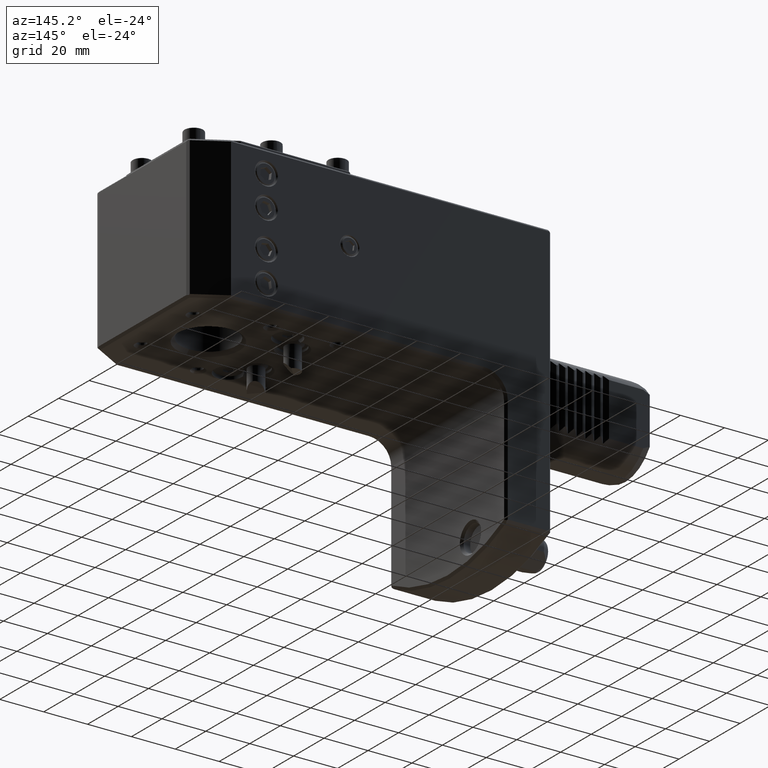
[diagram: clean part render]
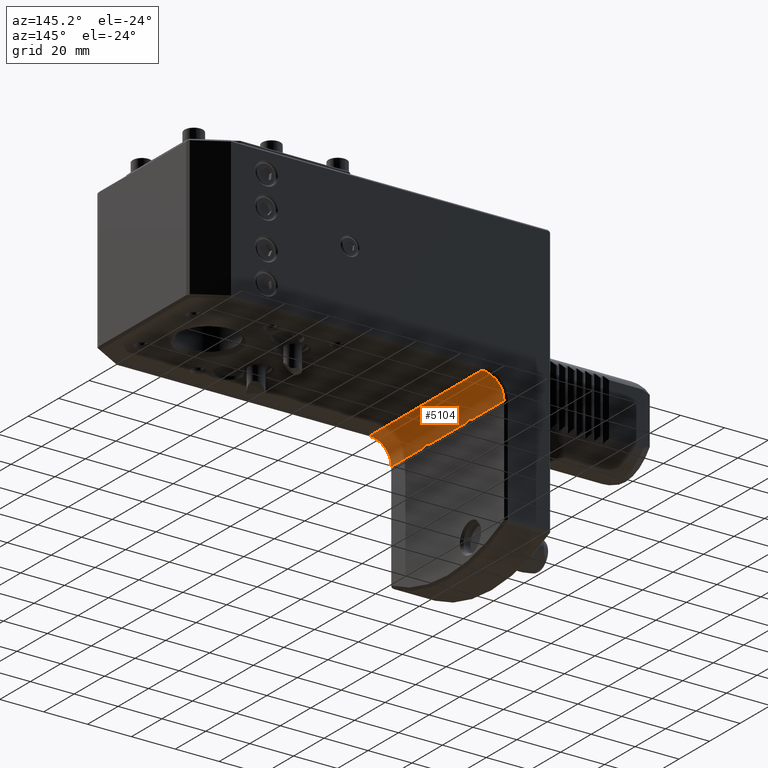
[diagram: same view with one face highlighted and labeled with its STEP entity id]
A machine part, auxiliary view. The second image highlights one B-rep face of the part: STEP entity #5104.
In plain terms, the highlighted cylindrical surface (edge-blend (fillet) strip) has radius 10 mm, axis along (0, -1, 0).
Its self-contained STEP definition (entity closure, byte-faithful):
#234 = CARTESIAN_POINT ( 'NONE',  ( 21.00429941967884062, -12.24703048330859012, -19.69344433482883971 ) ) ;
#283 = CARTESIAN_POINT ( 'NONE',  ( 21.00429941967544778, 15.25296951685867164, -19.69344433491230717 ) ) ;
#304 = CARTESIAN_POINT ( 'NONE',  ( 21.00000000000005684, -15.94099159352217399, -20.00000000000000000 ) ) ;
#592 = EDGE_CURVE ( 'NONE', #12827, #5093, #8855, .T. ) ;
#1128 = CARTESIAN_POINT ( 'NONE',  ( 21.00414847959521225, 12.24972233878997585, -19.70454977996013568 ) ) ;
#1178 = ORIENTED_EDGE ( 'NONE', *, *, #11609, .T. ) ;
#1207 = CARTESIAN_POINT ( 'NONE',  ( 21.00603640513734049, -15.07207360925334072, -19.64967377789318093 ) ) ;
#1259 = CARTESIAN_POINT ( 'NONE',  ( 21.01412131177549725, 13.93945347372310373, -19.46874974954663173 ) ) ;
#1613 = EDGE_LOOP ( 'NONE', ( #8124, #6541, #10934, #5066, #8957, #1178, #3729, #10136 ) ) ;
#1745 = DIRECTION ( 'NONE',  ( 3.491481338843133355E-15, -1.000000000000000000, -0.000000000000000000 ) ) ;
#2191 = CARTESIAN_POINT ( 'NONE',  ( 21.00112386204856563, -15.60189533309206311, -19.83624888275509690 ) ) ;
#2306 = CARTESIAN_POINT ( 'NONE',  ( 21.00961398586313322, 14.70006908275147950, -19.55933129749906385 ) ) ;
#2309 = CARTESIAN_POINT ( 'NONE',  ( 31.00000000000012790, -36.99999999999988631, -10.00000000000000000 ) ) ;
#2452 = CARTESIAN_POINT ( 'NONE',  ( 21.00961398586159135, -12.79993091716459119, -19.55933129754049560 ) ) ;
#2479 = VECTOR ( 'NONE', #3501, 1000.000000000000000 ) ;
#2506 = B_SPLINE_CURVE_WITH_KNOTS ( 'NONE', 3,
 ( #12137, #7410, #9113, #1128, #12402, #8133, #4400, #1259, #8260, #12204, #2306, #283, #3356, #3157 ),
 .UNSPECIFIED., .F., .F.,
 ( 4, 2, 2, 2, 2, 2, 4 ),
 ( 0.000000000000000000, 0.1250000000000001388, 0.2500000000000002776, 0.5000000000000005551, 0.6250000000000006661, 0.7500000000000008882, 1.000000000000000000 ),
 .UNSPECIFIED. ) ;
#2723 = LINE ( 'NONE', #6720, #7178 ) ;
#2760 = EDGE_CURVE ( 'NONE', #12827, #12185, #6355, .T. ) ;
#3097 = CARTESIAN_POINT ( 'NONE',  ( 20.99999999999987210, 37.00000000000007105, -20.00000000000000000 ) ) ;
#3157 = CARTESIAN_POINT ( 'NONE',  ( 20.99999999999994671, 15.94099159352137285, -20.00000000000000000 ) ) ;
#3306 = CARTESIAN_POINT ( 'NONE',  ( 21.00000000000004263, -11.55900840647822747, -20.00000000000000000 ) ) ;
#3310 = CARTESIAN_POINT ( 'NONE',  ( 30.99999999999987210, 37.00000000000010658, -20.00000000000000000 ) ) ;
#3356 = CARTESIAN_POINT ( 'NONE',  ( 20.99999999999994671, 15.60816953542644292, -19.82630002751531606 ) ) ;
#3427 = VERTEX_POINT ( 'NONE', #3097 ) ;
#3436 = CARTESIAN_POINT ( 'NONE',  ( 21.00000000000005684, -15.94099159352217399, -20.00000000000000000 ) ) ;
#3440 = EDGE_CURVE ( 'NONE', #4635, #5152, #11089, .T. ) ;
#3501 = DIRECTION ( 'NONE',  ( 3.491481338843133355E-15, -1.000000000000000000, -0.000000000000000000 ) ) ;
#3729 = ORIENTED_EDGE ( 'NONE', *, *, #7610, .F. ) ;
#4205 = CARTESIAN_POINT ( 'NONE',  ( 20.99999999999994671, 15.94099159352137285, -20.00000000000000000 ) ) ;
#4289 = CARTESIAN_POINT ( 'NONE',  ( 21.00414847959446263, -15.25027766130798845, -19.70454977999659363 ) ) ;
#4400 = CARTESIAN_POINT ( 'NONE',  ( 21.01411057190551546, 13.36763158417471331, -19.46895165188045240 ) ) ;
#4417 = CARTESIAN_POINT ( 'NONE',  ( 21.01139012682589780, -14.51566318376794129, -19.51438699474243066 ) ) ;
#4521 = CARTESIAN_POINT ( 'NONE',  ( 21.00000000000012790, -36.99999999999992184, -20.00000000000000000 ) ) ;
#4635 = VERTEX_POINT ( 'NONE', #10112 ) ;
#4930 = DIRECTION ( 'NONE',  ( 0.000000000000000000, 0.000000000000000000, -1.000000000000000000 ) ) ;
#5066 = ORIENTED_EDGE ( 'NONE', *, *, #11285, .T. ) ;
#5093 = VERTEX_POINT ( 'NONE', #4521 ) ;
#5104 = ADVANCED_FACE ( 'NONE', ( #11350 ), #8518, .F. ) ;
#5152 = VERTEX_POINT ( 'NONE', #9374 ) ;
#5199 = CARTESIAN_POINT ( 'NONE',  ( 21.01411057190565046, -14.13236841596239124, -19.46895165187958199 ) ) ;
#5271 = LINE ( 'NONE', #12229, #2479 ) ;
#5335 = CARTESIAN_POINT ( 'NONE',  ( 21.01412131177558607, -13.56054652620849055, -19.46874974954676318 ) ) ;
#5792 = CARTESIAN_POINT ( 'NONE',  ( 30.99999999999987210, 37.00000000000010658, -10.00000000000000000 ) ) ;
#6099 = DIRECTION ( 'NONE',  ( 3.491481338843133355E-15, -1.000000000000000000, -0.000000000000000000 ) ) ;
#6318 = CARTESIAN_POINT ( 'NONE',  ( 21.00000000000005684, -15.77478174107680964, -19.91325517975105086 ) ) ;
#6355 = LINE ( 'NONE', #7394, #10377 ) ;
#6541 = ORIENTED_EDGE ( 'NONE', *, *, #592, .T. ) ;
#6555 = AXIS2_PLACEMENT_3D ( 'NONE', #12152, #10181, #4930 ) ;
#6720 = CARTESIAN_POINT ( 'NONE',  ( 21.00000000000014211, -40.99999999999992895, -20.00000000000000000 ) ) ;
#6748 = AXIS2_PLACEMENT_3D ( 'NONE', #8323, #12527, #10364 ) ;
#7178 = VECTOR ( 'NONE', #1745, 1000.000000000000000 ) ;
#7394 = CARTESIAN_POINT ( 'NONE',  ( 30.99999999999985789, 41.00000000000011369, -10.00000000000000000 ) ) ;
#7410 = CARTESIAN_POINT ( 'NONE',  ( 20.99999999999996803, 11.72521825892344083, -19.91325517975121784 ) ) ;
#7610 = EDGE_CURVE ( 'NONE', #3427, #11590, #2723, .T. ) ;
#8124 = ORIENTED_EDGE ( 'NONE', *, *, #2760, .F. ) ;
#8133 = CARTESIAN_POINT ( 'NONE',  ( 21.01139012682799034, 12.98433681656657690, -19.51438699468729965 ) ) ;
#8260 = CARTESIAN_POINT ( 'NONE',  ( 21.01351087378029447, 14.12879329723127064, -19.47985924853574247 ) ) ;
#8323 = CARTESIAN_POINT ( 'NONE',  ( 31.00000000000014211, -40.99999999999989342, -20.00000000000000000 ) ) ;
#8518 = CYLINDRICAL_SURFACE ( 'NONE', #6748, 10.00000000000000000 ) ;
#8855 = CIRCLE ( 'NONE', #6555, 9.999999999999998224 ) ;
#8884 = EDGE_CURVE ( 'NONE', #3427, #12185, #10416, .T. ) ;
#8957 = ORIENTED_EDGE ( 'NONE', *, *, #3440, .F. ) ;
#9113 = CARTESIAN_POINT ( 'NONE',  ( 21.00112386204762771, 11.89810466681077550, -19.83624888279175735 ) ) ;
#9114 = CARTESIAN_POINT ( 'NONE',  ( 21.00000000000014211, -40.99999999999992895, -20.00000000000000000 ) ) ;
#9196 = CARTESIAN_POINT ( 'NONE',  ( 21.01351087378014171, -13.37120670265749389, -19.47985924854085837 ) ) ;
#9362 = AXIS2_PLACEMENT_3D ( 'NONE', #3310, #9401, #11308 ) ;
#9374 = CARTESIAN_POINT ( 'NONE',  ( 21.00000000000004263, -11.55900840647822747, -20.00000000000000000 ) ) ;
#9401 = DIRECTION ( 'NONE',  ( -3.491481338843133355E-15, 1.000000000000000000, -0.000000000000000000 ) ) ;
#10112 = CARTESIAN_POINT ( 'NONE',  ( 20.99999999999996092, 11.55900840647833228, -20.00000000000000000 ) ) ;
#10136 = ORIENTED_EDGE ( 'NONE', *, *, #8884, .T. ) ;
#10175 = EDGE_CURVE ( 'NONE', #11304, #5093, #5271, .T. ) ;
#10181 = DIRECTION ( 'NONE',  ( 3.491481338843133355E-15, -1.000000000000000000, -0.000000000000000000 ) ) ;
#10364 = DIRECTION ( 'NONE',  ( 0.000000000000000000, 0.000000000000000000, 1.000000000000000000 ) ) ;
#10377 = VECTOR ( 'NONE', #11401, 1000.000000000000000 ) ;
#10416 = CIRCLE ( 'NONE', #9362, 10.00000000000000000 ) ;
#10934 = ORIENTED_EDGE ( 'NONE', *, *, #10175, .F. ) ;
#11089 = LINE ( 'NONE', #9114, #11851 ) ;
#11235 = CARTESIAN_POINT ( 'NONE',  ( 21.01126037256564416, -12.99007461276695530, -19.52503460677774783 ) ) ;
#11285 = EDGE_CURVE ( 'NONE', #11304, #5152, #11911, .T. ) ;
#11304 = VERTEX_POINT ( 'NONE', #3436 ) ;
#11308 = DIRECTION ( 'NONE',  ( 0.000000000000000000, 0.000000000000000000, 1.000000000000000000 ) ) ;
#11350 = FACE_OUTER_BOUND ( 'NONE', #1613, .T. ) ;
#11401 = DIRECTION ( 'NONE',  ( -3.491481338843133355E-15, 1.000000000000000000, 0.000000000000000000 ) ) ;
#11590 = VERTEX_POINT ( 'NONE', #4205 ) ;
#11609 = EDGE_CURVE ( 'NONE', #4635, #11590, #2506, .T. ) ;
#11851 = VECTOR ( 'NONE', #6099, 1000.000000000000000 ) ;
#11911 = B_SPLINE_CURVE_WITH_KNOTS ( 'NONE', 3,
 ( #304, #6318, #2191, #4289, #1207, #4417, #5199, #5335, #9196, #11235, #2452, #234, #12286, #3306 ),
 .UNSPECIFIED., .F., .F.,
 ( 4, 2, 2, 2, 2, 2, 4 ),
 ( 0.000000000000000000, 0.1249999999999998612, 0.2499999999999997224, 0.4999999999999994449, 0.6249999999999993339, 0.7499999999999991118, 1.000000000000000000 ),
 .UNSPECIFIED. ) ;
#12137 = CARTESIAN_POINT ( 'NONE',  ( 20.99999999999996092, 11.55900840647833228, -20.00000000000000000 ) ) ;
#12152 = CARTESIAN_POINT ( 'NONE',  ( 31.00000000000012790, -36.99999999999988631, -20.00000000000000000 ) ) ;
#12185 = VERTEX_POINT ( 'NONE', #5792 ) ;
#12204 = CARTESIAN_POINT ( 'NONE',  ( 21.01126037256528178, 14.50992538734407766, -19.52503460678336111 ) ) ;
#12229 = CARTESIAN_POINT ( 'NONE',  ( 21.00000000000014211, -40.99999999999992895, -20.00000000000000000 ) ) ;
#12286 = CARTESIAN_POINT ( 'NONE',  ( 21.00000000000003908, -11.89183046443229408, -19.82630002758878618 ) ) ;
#12402 = CARTESIAN_POINT ( 'NONE',  ( 21.00603640513614323, 12.42792639057976878, -19.64967377792097736 ) ) ;
#12527 = DIRECTION ( 'NONE',  ( 3.491481338843133355E-15, -1.000000000000000000, 0.000000000000000000 ) ) ;
#12827 = VERTEX_POINT ( 'NONE', #2309 ) ;